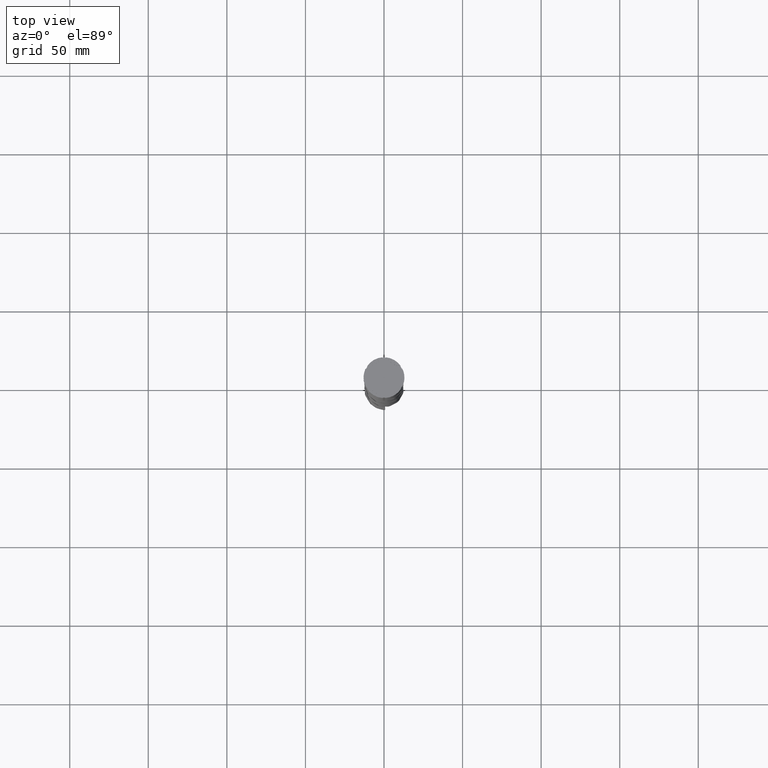
[diagram: clean part render]
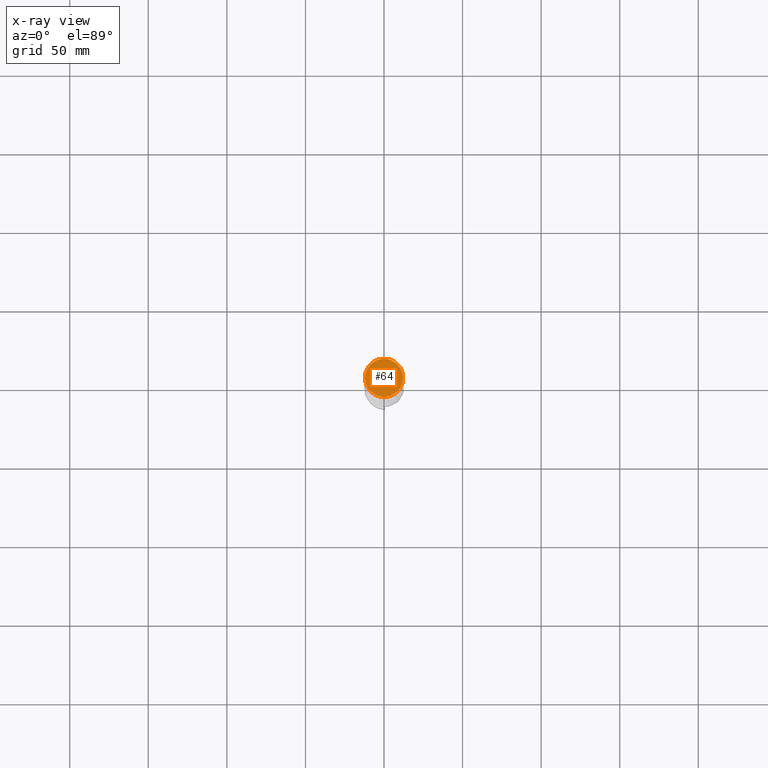
[diagram: x-ray — body ghosted, one internal face saturated and labeled with its STEP entity id]
A machine part, top view, then the same camera in x-ray: the body is ghosted and one INTERNAL B-rep face — a face not visible from any outside direction — is saturated and labeled: STEP entity #64.
In plain terms, the highlighted planar face has unit normal (0, 0, -1).
Its self-contained STEP definition (entity closure, byte-faithful):
#64 = ADVANCED_FACE ( 'NONE', ( #3068 ), #4202, .F. ) ;
#97 = CARTESIAN_POINT ( 'NONE',  ( 0.000000000000000000, 0.000000000000000000, -12.00000000000000000 ) ) ;
#218 = DIRECTION ( 'NONE',  ( -1.000000000000000000, 0.000000000000000000, 0.000000000000000000 ) ) ;
#409 = EDGE_CURVE ( 'NONE', #3119, #707, #1553, .T. ) ;
#638 = CARTESIAN_POINT ( 'NONE',  ( 0.000000000000000000, 0.000000000000000000, -12.00000000000000000 ) ) ;
#707 = VERTEX_POINT ( 'NONE', #2006 ) ;
#730 = CIRCLE ( 'NONE', #1704, 12.20000000000000639 ) ;
#801 = AXIS2_PLACEMENT_3D ( 'NONE', #97, #3725, #2639 ) ;
#993 = DIRECTION ( 'NONE',  ( -0.000000000000000000, -0.000000000000000000, 1.000000000000000000 ) ) ;
#1135 = EDGE_CURVE ( 'NONE', #707, #3119, #730, .T. ) ;
#1289 = CARTESIAN_POINT ( 'NONE',  ( 0.000000000000000000, 0.000000000000000000, -12.00000000000000000 ) ) ;
#1309 = DIRECTION ( 'NONE',  ( 0.000000000000000000, 0.000000000000000000, -1.000000000000000000 ) ) ;
#1553 = CIRCLE ( 'NONE', #801, 12.20000000000000639 ) ;
#1704 = AXIS2_PLACEMENT_3D ( 'NONE', #638, #993, #218 ) ;
#2006 = CARTESIAN_POINT ( 'NONE',  ( 12.20000000000000639, 1.512438796946981880E-15, -12.00000000000000000 ) ) ;
#2638 = ORIENTED_EDGE ( 'NONE', *, *, #1135, .T. ) ;
#2639 = DIRECTION ( 'NONE',  ( -1.000000000000000000, 0.000000000000000000, 0.000000000000000000 ) ) ;
#2715 = DIRECTION ( 'NONE',  ( -1.000000000000000000, 0.000000000000000000, -0.000000000000000000 ) ) ;
#2949 = CARTESIAN_POINT ( 'NONE',  ( -12.20000000000000639, 0.000000000000000000, -12.00000000000000000 ) ) ;
#2956 = ORIENTED_EDGE ( 'NONE', *, *, #409, .T. ) ;
#3068 = FACE_OUTER_BOUND ( 'NONE', #3600, .T. ) ;
#3119 = VERTEX_POINT ( 'NONE', #2949 ) ;
#3202 = AXIS2_PLACEMENT_3D ( 'NONE', #1289, #1309, #2715 ) ;
#3600 = EDGE_LOOP ( 'NONE', ( #2956, #2638 ) ) ;
#3725 = DIRECTION ( 'NONE',  ( -0.000000000000000000, -0.000000000000000000, 1.000000000000000000 ) ) ;
#4202 = PLANE ( 'NONE',  #3202 ) ;